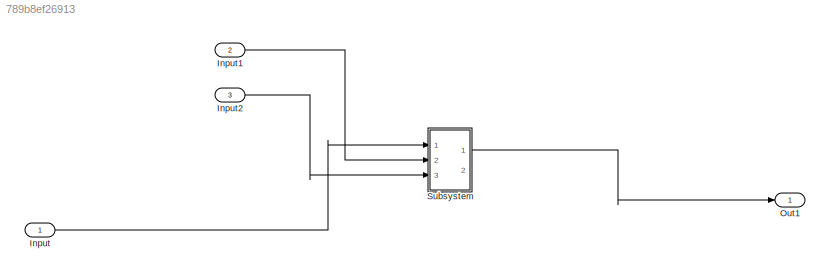
MODEL slx_789b8ef26913
KIND model
CONFIG AbsTol = auto
CONFIG EnableMultiTasking = off
CONFIG FixedStep = auto
CONFIG MaxStep = auto
CONFIG MinStep = auto
CONFIG RelTol = 1e-3
CONFIG SampleTimeConstraint = Unconstrained
CONFIG Solver = VariableStepAuto
CONFIG SolverName = VariableStepAuto
CONFIG StartTime = 0.0
CONFIG StopTime = 10.0
BLOCK [Inport] Input
  IconDisplay = Port number
BLOCK [Inport] Input1
  IconDisplay = Port number
  Port = 2
BLOCK [Inport] Input2
  IconDisplay = Port number
  Port = 3
BLOCK [Outport] Out1
  IconDisplay = Port number
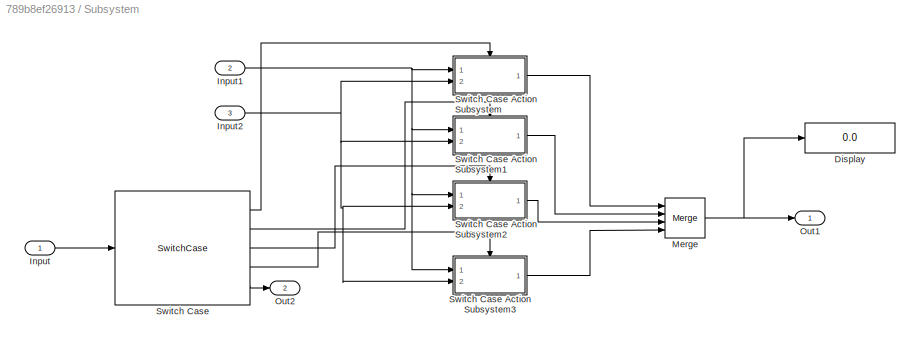
BLOCK [SubSystem] Subsystem
  Ports = [3, 2]
  RequestExecContextInheritance = off
BLOCK [Display] Subsystem/Display
  Decimation = 1
  Ports = [1]
BLOCK [Inport] Subsystem/Input
  IconDisplay = Port number
BLOCK [Inport] Subsystem/Input1
  IconDisplay = Port number
  Port = 2
BLOCK [Inport] Subsystem/Input2
  IconDisplay = Port number
  Port = 3
BLOCK [Merge] Subsystem/Merge
  Inputs = 4
  Ports = [4, 1]
BLOCK [Outport] Subsystem/Out1
  IconDisplay = Port number
BLOCK [Outport] Subsystem/Out2
  IconDisplay = Port number
  Port = 2
BLOCK [SwitchCase] Subsystem/Switch Case
  CaseConditions = {1 , 2 , 3 , 4}
  Ports = [1, 5]
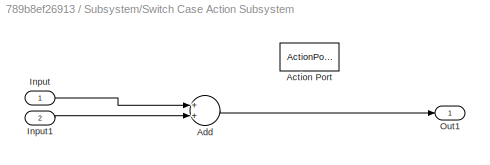
BLOCK [SubSystem] Subsystem/Switch Case Action Subsystem
  Ports = [2, 1, 0, 0, 0, 0, 0, 1]
  RequestExecContextInheritance = off
  TreatAsAtomicUnit = on
BLOCK [ActionPort] Subsystem/Switch Case Action Subsystem/Action Port
  ActionType = case
BLOCK [Sum] Subsystem/Switch Case Action Subsystem/Add
  InputSameDT = off
  OutDataTypeStr = Inherit: Inherit via internal rule
  Ports = [2, 1]
  SaturateOnIntegerOverflow = off
BLOCK [Inport] Subsystem/Switch Case Action Subsystem/Input
  IconDisplay = Port number
BLOCK [Inport] Subsystem/Switch Case Action Subsystem/Input1
  IconDisplay = Port number
  Port = 2
BLOCK [Outport] Subsystem/Switch Case Action Subsystem/Out1
  IconDisplay = Port number
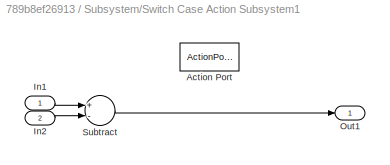
BLOCK [SubSystem] Subsystem/Switch Case Action Subsystem1
  Ports = [2, 1, 0, 0, 0, 0, 0, 1]
  RequestExecContextInheritance = off
  TreatAsAtomicUnit = on
BLOCK [ActionPort] Subsystem/Switch Case Action Subsystem1/Action Port
  ActionType = case
BLOCK [Inport] Subsystem/Switch Case Action Subsystem1/In1
  IconDisplay = Port number
BLOCK [Inport] Subsystem/Switch Case Action Subsystem1/In2
  IconDisplay = Port number
  Port = 2
BLOCK [Outport] Subsystem/Switch Case Action Subsystem1/Out1
  IconDisplay = Port number
BLOCK [Sum] Subsystem/Switch Case Action Subsystem1/Subtract
  InputSameDT = off
  Inputs = +-
  OutDataTypeStr = Inherit: Inherit via internal rule
  Ports = [2, 1]
  SaturateOnIntegerOverflow = off
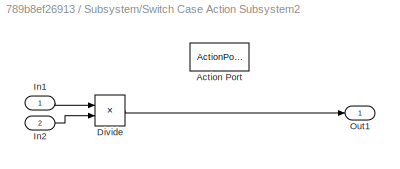
BLOCK [SubSystem] Subsystem/Switch Case Action Subsystem2
  Ports = [2, 1, 0, 0, 0, 0, 0, 1]
  RequestExecContextInheritance = off
  TreatAsAtomicUnit = on
BLOCK [ActionPort] Subsystem/Switch Case Action Subsystem2/Action Port
  ActionType = case
BLOCK [Product] Subsystem/Switch Case Action Subsystem2/Divide
  InputSameDT = off
  Inputs = */
  OutDataTypeStr = Inherit: Inherit via internal rule
  Ports = [2, 1]
  RndMeth = Floor
  SaturateOnIntegerOverflow = off
BLOCK [Inport] Subsystem/Switch Case Action Subsystem2/In1
  IconDisplay = Port number
BLOCK [Inport] Subsystem/Switch Case Action Subsystem2/In2
  IconDisplay = Port number
  Port = 2
BLOCK [Outport] Subsystem/Switch Case Action Subsystem2/Out1
  IconDisplay = Port number
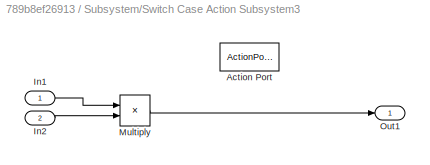
BLOCK [SubSystem] Subsystem/Switch Case Action Subsystem3
  Ports = [2, 1, 0, 0, 0, 0, 0, 1]
  RequestExecContextInheritance = off
  TreatAsAtomicUnit = on
BLOCK [ActionPort] Subsystem/Switch Case Action Subsystem3/Action Port
  ActionType = case
BLOCK [Inport] Subsystem/Switch Case Action Subsystem3/In1
  IconDisplay = Port number
BLOCK [Inport] Subsystem/Switch Case Action Subsystem3/In2
  IconDisplay = Port number
  Port = 2
BLOCK [Product] Subsystem/Switch Case Action Subsystem3/Multiply
  InputSameDT = off
  OutDataTypeStr = Inherit: Inherit via internal rule
  Ports = [2, 1]
  RndMeth = Floor
  SaturateOnIntegerOverflow = off
BLOCK [Outport] Subsystem/Switch Case Action Subsystem3/Out1
  IconDisplay = Port number
LINE Input1:1 -> Subsystem:2
LINE Input2:1 -> Subsystem:3
LINE Input:1 -> Subsystem:1
NET Subsystem/Input1:1 -> Subsystem/Switch Case Action Subsystem1:1, Subsystem/Switch Case Action Subsystem2:1, Subsystem/Switch Case Action Subsystem3:1, Subsystem/Switch Case Action Subsystem:1
NET Subsystem/Input2:1 -> Subsystem/Switch Case Action Subsystem1:2, Subsystem/Switch Case Action Subsystem2:2, Subsystem/Switch Case Action Subsystem3:2, Subsystem/Switch Case Action Subsystem:2
LINE Subsystem/Input:1 -> Subsystem/Switch Case:1
NET Subsystem/Merge:1 -> Subsystem/Display:1, Subsystem/Out1:1
LINE Subsystem/Switch Case Action Subsystem/Add:1 -> Subsystem/Switch Case Action Subsystem/Out1:1
LINE Subsystem/Switch Case Action Subsystem/Input1:1 -> Subsystem/Switch Case Action Subsystem/Add:2
LINE Subsystem/Switch Case Action Subsystem/Input:1 -> Subsystem/Switch Case Action Subsystem/Add:1
LINE Subsystem/Switch Case Action Subsystem1/In1:1 -> Subsystem/Switch Case Action Subsystem1/Subtract:1
LINE Subsystem/Switch Case Action Subsystem1/In2:1 -> Subsystem/Switch Case Action Subsystem1/Subtract:2
LINE Subsystem/Switch Case Action Subsystem1/Subtract:1 -> Subsystem/Switch Case Action Subsystem1/Out1:1
LINE Subsystem/Switch Case Action Subsystem1:1 -> Subsystem/Merge:2
LINE Subsystem/Switch Case Action Subsystem2/Divide:1 -> Subsystem/Switch Case Action Subsystem2/Out1:1
LINE Subsystem/Switch Case Action Subsystem2/In1:1 -> Subsystem/Switch Case Action Subsystem2/Divide:1
LINE Subsystem/Switch Case Action Subsystem2/In2:1 -> Subsystem/Switch Case Action Subsystem2/Divide:2
LINE Subsystem/Switch Case Action Subsystem2:1 -> Subsystem/Merge:3
LINE Subsystem/Switch Case Action Subsystem3/In1:1 -> Subsystem/Switch Case Action Subsystem3/Multiply:1
LINE Subsystem/Switch Case Action Subsystem3/In2:1 -> Subsystem/Switch Case Action Subsystem3/Multiply:2
LINE Subsystem/Switch Case Action Subsystem3/Multiply:1 -> Subsystem/Switch Case Action Subsystem3/Out1:1
LINE Subsystem/Switch Case Action Subsystem3:1 -> Subsystem/Merge:4
LINE Subsystem/Switch Case Action Subsystem:1 -> Subsystem/Merge:1
LINE Subsystem/Switch Case:1 -> Subsystem/Switch Case Action Subsystem:ifaction
LINE Subsystem/Switch Case:2 -> Subsystem/Switch Case Action Subsystem1:ifaction
LINE Subsystem/Switch Case:3 -> Subsystem/Switch Case Action Subsystem2:ifaction
LINE Subsystem/Switch Case:4 -> Subsystem/Switch Case Action Subsystem3:ifaction
LINE Subsystem/Switch Case:5 -> Subsystem/Out2:1
LINE Subsystem:1 -> Out1:1
note: NET lines group one-source signal fan-out (src -> all destinations, sorted); 1:1 wires keep LINE
